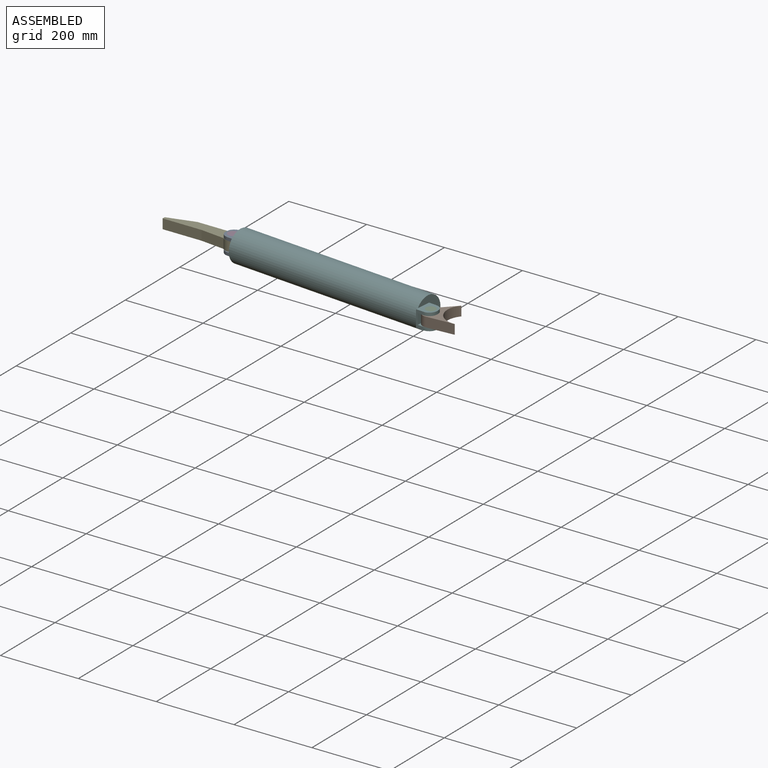
[diagram: assembled view]
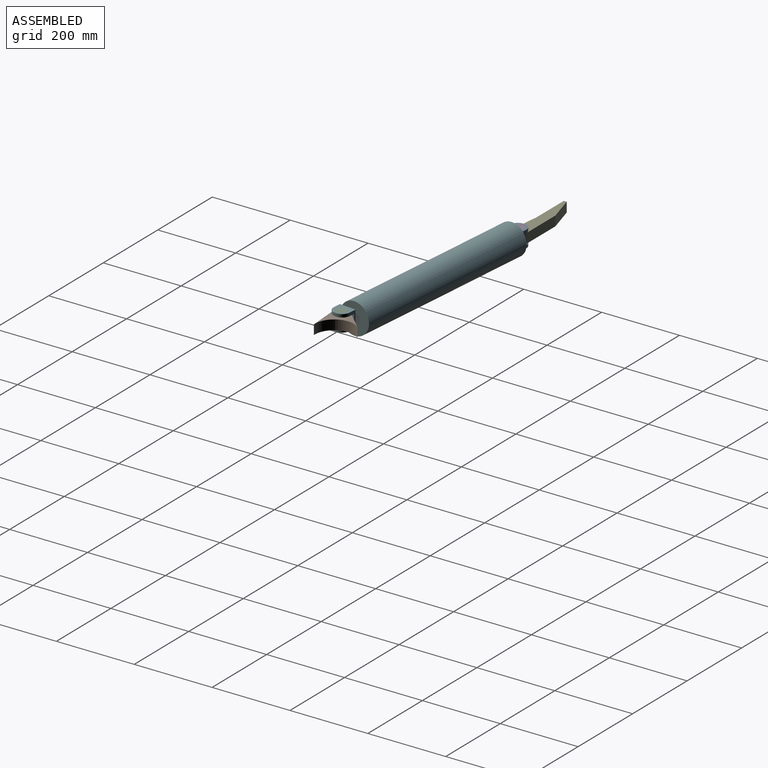
[diagram: assembled view, second angle]
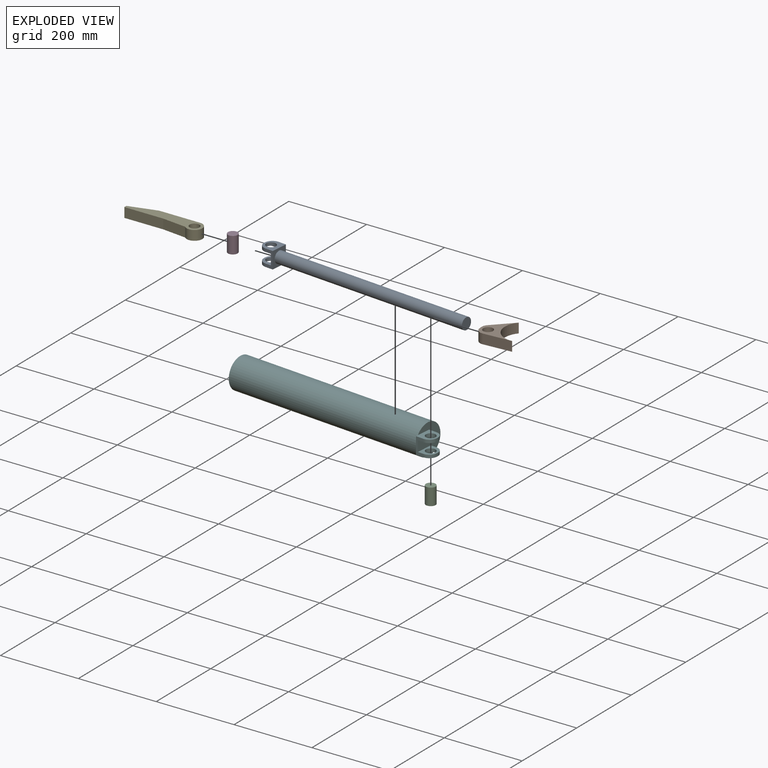
[diagram: exploded view]
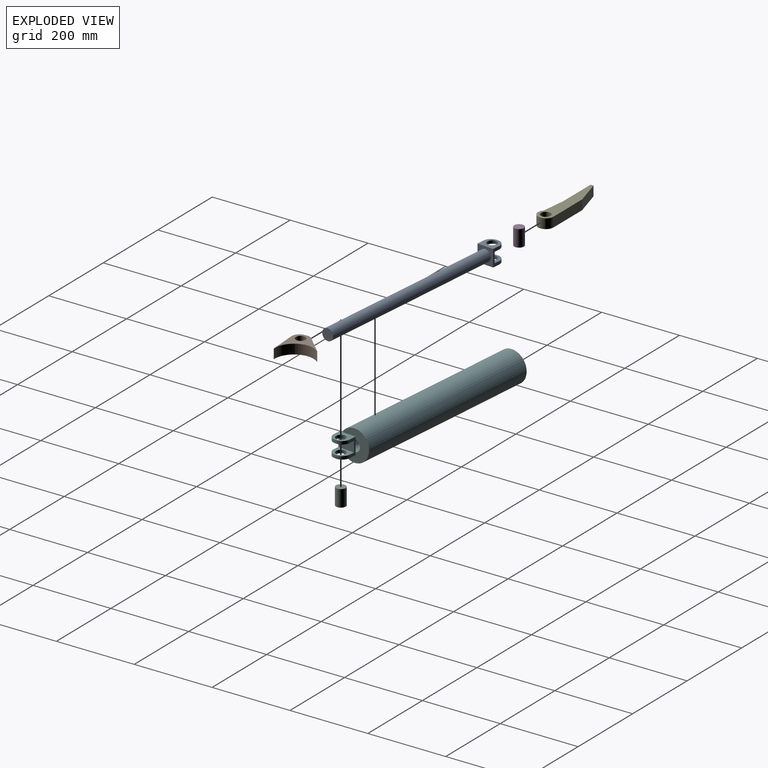
[diagram: exploded view, second angle]
ASSEMBLY  parts=6 mates=5
PART A: 18 faces, bbox 43x43x555 mm
  f0: plane 43x27mm, normal (0,0,1), area 1161mm2, adj f3,f5,f8,f10
  f1: cylinder r=15mm len=515mm, axis (0,0,-1), area 48537.6mm2, adj f2,f7
  f2: plane 30x30mm, normal (0,0,-1), area 706.9mm2, adj f1
  f3: plane 43x20mm, normal (0,-1,0), area 455mm2, adj f0,f4,f6,f7,f8,f10,f15,f16
  f4: plane 43x40mm, normal (1,0,0), area 1057.4mm2, adj f3,f5,f7,f9,f13,f16,f17
  f5: plane 43x20mm, normal (0,1,0), area 455mm2, adj f0,f4,f6,f7,f8,f10,f14,f17
  f6: plane 43x40mm, normal (-1,0,0), area 1057.4mm2, adj f3,f5,f7,f11,f12,f14,f15
  f7: plane 43x43mm, normal (0,0,-1), area 1142.1mm2, adj f1,f3,f4,f5,f6
  f8: plane 43x35mm, normal (-1,0,0), area 842.4mm2, adj f0,f3,f5,f9,f13,f16,f17
  f9: plane 8x3mm, normal (0,0,1), area 24mm2, adj f4,f8,f16,f17
  f10: plane 43x35mm, normal (1,0,0), area 842.4mm2, adj f0,f3,f5,f11,f12,f14,f15
  f11: plane 8x3mm, normal (0,0,1), area 24mm2, adj f6,f10,f14,f15
  f12: cylinder r=12.5mm len=25mm, axis (-1,0,0), area 628.3mm2, adj f6,f10
  f13: cylinder r=12.5mm len=25mm, axis (-1,0,0), area 628.3mm2, adj f4,f8
  f14: cylinder r=20mm len=20mm, axis (1,0,0), area 251.3mm2, adj f5,f6,f10,f11
  f15: cylinder r=20mm len=20mm, axis (-1,0,0), area 251.3mm2, adj f3,f6,f10,f11
  f16: cylinder r=20mm len=20mm, axis (-1,0,0), area 251.3mm2, adj f3,f4,f8,f9
  f17: cylinder r=20mm len=20mm, axis (1,0,0), area 251.3mm2, adj f4,f5,f8,f9
PART B: 9 faces, bbox 91.5x85.6x25 mm
  f0: plane 25x6.07mm, normal (1,0,0), area 151.8mm2, adj f5,f6,f7,f8
  f1: plane 49.78x44.64mm, normal (0.67,0.74,0), area 1671.4mm2, adj f2,f5,f6,f8
  f2: cylinder r=50mm len=85.6mm, axis (0,0,-1), area 2953.8mm2, adj f1,f3,f5,f6
  f3: plane 71.54x25mm, normal (0,-1,0), area 1788.4mm2, adj f2,f5,f6,f7
  f4: cylinder r=12.5mm len=25mm, axis (0,0,-1), area 1963.5mm2, adj f5,f6
  f5: plane 91.54x85.6mm, normal (0,0,1), area 2241.7mm2, adj f0,f1,f2,f3,f4,f7,f8
  f6: plane 91.54x85.6mm, normal (0,0,-1), area 2241.7mm2, adj f0,f1,f2,f3,f4,f7,f8
  f7: cylinder r=20mm len=25mm, axis (0,0,-1), area 785.4mm2, adj f0,f3,f5,f6
  f8: cylinder r=20mm len=25mm, axis (0,0,-1), area 419.9mm2, adj f0,f1,f5,f6
PART C: 3 faces, bbox 25x25x43 mm
  f0: cylinder r=12.5mm len=43mm, axis (0,0,-1), area 3377.2mm2, adj f1,f2
  f1: plane 25x25mm, normal (0,0,1), area 490.9mm2, adj f0
  f2: plane 25x25mm, normal (0,0,-1), area 490.9mm2, adj f0
PART D: same geometry as C
PART E: 9 faces, bbox 195x40x25 mm
  f0: plane 105x25mm, normal (0,1,0), area 2625mm2, adj f4,f6,f7,f8
  f1: plane 25x7.5mm, normal (-1,0,0), area 187.5mm2, adj f2,f6,f7,f8
  f2: plane 100x25mm, normal (0,-1,0), area 2500mm2, adj f1,f3,f6,f7
  f3: plane 61.09x25mm, normal (-0.11,-0.99,0), area 1536.7mm2, adj f2,f4,f6,f7
  f4: cylinder r=20mm len=40mm, axis (0,0,-1), area 1955.5mm2, adj f0,f3,f6,f7
  f5: cylinder r=12.5mm len=25mm, axis (0,0,-1), area 1963.5mm2, adj f6,f7
  f6: plane 195x40mm, normal (0,0,1), area 4609.1mm2, adj f0,f1,f2,f3,f4,f5,f8
  f7: plane 195x40mm, normal (0,0,-1), area 4609.1mm2, adj f0,f1,f2,f3,f4,f5,f8
  f8: plane 70x25mm, normal (-0.27,0.96,0), area 1820mm2, adj f0,f1,f6,f7
PART F: 22 faces, bbox 80x80x555 mm
  f0: plane 43x27mm, normal (0,0,-1), area 1161mm2, adj f8,f10,f12,f14
  f1: plane 80x73.73mm, normal (0,0,-1), area 3000.4mm2, adj f2,f3,f7,f8,f9
  f2: cylinder r=15mm len=515mm, axis (0,0,-1), area 48537.6mm2, adj f1,f4,f5
  f3: cylinder r=40mm len=515mm, axis (0,0,-1), area 129433.6mm2, adj f1,f4,f6,f11
  f4: plane 80x80mm, normal (0,0,1), area 4319.7mm2, adj f2,f3
  f5: plane 30x18mm, normal (0,0,1), area 442.8mm2, adj f2,f8
  f6: plane 21.5x6.27mm, normal (0,0,1), area 43.4mm2, adj f3,f7,f10
  f7: plane 43x40mm, normal (1,0,0), area 1057.4mm2, adj f1,f6,f8,f10,f13,f17,f20,f21
  f8: plane 43x20mm, normal (0,-1,0), area 455mm2, adj f0,f1,f5,f7,f9,f12,f14,f18
  f9: plane 43x40mm, normal (-1,0,0), area 1057.4mm2, adj f1,f8,f10,f11,f15,f16,f18,f19
  f10: plane 43x20mm, normal (0,1,0), area 455mm2, adj f0,f6,f7,f9,f11,f12,f14,f19
  f11: plane 21.5x6.27mm, normal (0,0,1), area 43.4mm2, adj f3,f9,f10
  f12: plane 43x35mm, normal (-1,0,0), area 842.4mm2, adj f0,f8,f10,f13,f17,f20,f21
  f13: plane 8x3mm, normal (0,0,-1), area 24mm2, adj f7,f12,f20,f21
  f14: plane 43x35mm, normal (1,0,0), area 842.4mm2, adj f0,f8,f10,f15,f16,f18,f19
  f15: plane 8x3mm, normal (0,0,-1), area 24mm2, adj f9,f14,f18,f19
  f16: cylinder r=12.5mm len=25mm, axis (-1,0,0), area 628.3mm2, adj f9,f14
  f17: cylinder r=12.5mm len=25mm, axis (-1,0,0), area 628.3mm2, adj f7,f12
  f18: cylinder r=20mm len=20mm, axis (1,0,0), area 251.3mm2, adj f8,f9,f14,f15
  f19: cylinder r=20mm len=20mm, axis (-1,0,0), area 251.3mm2, adj f9,f10,f14,f15
  f20: cylinder r=20mm len=20mm, axis (-1,0,0), area 251.3mm2, adj f7,f10,f12,f13
  f21: cylinder r=20mm len=20mm, axis (1,0,0), area 251.3mm2, adj f7,f8,f12,f13
PLACE A rot(axis=(-0.04,-1,-0.04),90.1deg) t=(302.43,337.27,19.12)mm
PLACE B rot(axis=(-0.03,1,0),180deg) t=(393.59,349.26,31.62)mm
PLACE C rot(axis=(0,0,1),3.9deg) t=(321.74,316.74,-2.38)mm
PLACE D rot(axis=(0,0,1),90deg) t=(-232.94,383.59,-2.38)mm
PLACE E t=(-307.94,405.05,6.62)mm fixed
PLACE F rot(axis=(-0.71,0.03,0.71),176.4deg) t=(302.43,337.27,19.12)mm
MATE revolute C.f0 <-> F.f16  axis (0,0,-1) through (323.2,316.84,-2.38)mm
MATE fastened D.f0 <-> E.f4  axis (0,0,-1) through (-232.94,385.05,19.12)mm
MATE fastened B.f4 <-> C.f0  axis (0,0,1) through (323.2,316.84,19.12)mm
MATE revolute D.f0 <-> A.f12  axis (0,0,1) through (-232.94,385.05,40.62)mm
MATE fastened A.f1 <-> F.f2  axis (1,-0.09,0) through (302.43,337.27,19.12)mm
